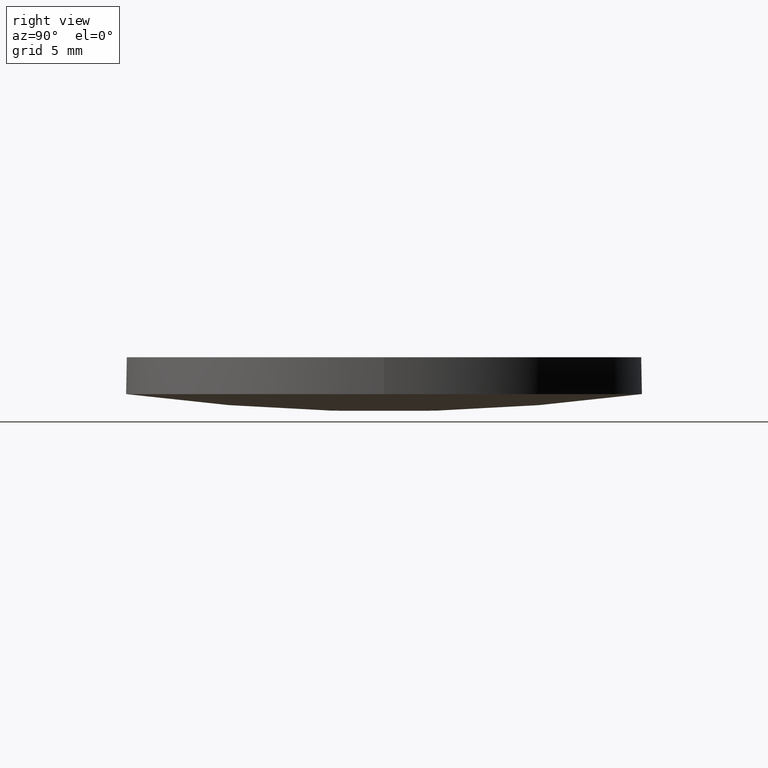
[diagram: clean part render]
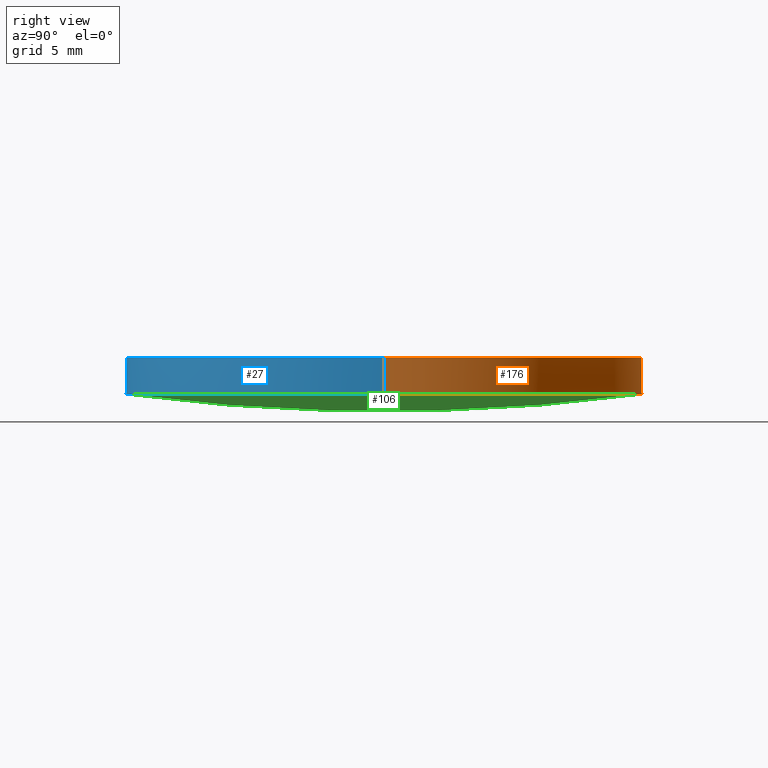
[diagram: same view with three faces highlighted in distinct colors, each labeled with its STEP entity id]
A machine part, right view with three faces highlighted in distinct colors.
Their STEP definitions:

[orange] entity #176 — the highlighted cylindrical surface (partial cylindrical patch) has radius 19.05 mm, axis along (0, 0, 1).
#12 = ORIENTED_EDGE ( 'NONE', *, *, #69, .T. ) ;
#13 = DIRECTION ( 'NONE',  ( -0.0000000000000000000, -0.0000000000000000000, -1.000000000000000000 ) ) ;
#16 = EDGE_LOOP ( 'NONE', ( #151, #12, #138, #203, #189 ) ) ;
#22 = VERTEX_POINT ( 'NONE', #72 ) ;
#23 = EDGE_CURVE ( 'NONE', #75, #175, #190, .T. ) ;
#26 = CYLINDRICAL_SURFACE ( 'NONE', #96, 19.05000000000000100 ) ;
#29 = CARTESIAN_POINT ( 'NONE',  ( -4.662936703425659800E-015, -8.881784197001250400E-016, 1.276371230808250000 ) ) ;
#30 = AXIS2_PLACEMENT_3D ( 'NONE', #29, #161, #194 ) ;
#32 = CARTESIAN_POINT ( 'NONE',  ( 19.04999999999999700, -8.881784197001250400E-016, 1.276371230808250000 ) ) ;
#36 = CARTESIAN_POINT ( 'NONE',  ( 19.04999999999999700, -8.881784197001250400E-016, 4.000000000000000000 ) ) ;
#43 = FACE_OUTER_BOUND ( 'NONE', #16, .T. ) ;
#69 = EDGE_CURVE ( 'NONE', #107, #22, #90, .T. ) ;
#70 = DIRECTION ( 'NONE',  ( 0.0000000000000000000, 0.0000000000000000000, 1.000000000000000000 ) ) ;
#71 = EDGE_CURVE ( 'NONE', #208, #75, #79, .T. ) ;
#72 = CARTESIAN_POINT ( 'NONE',  ( -19.05000000000000400, 1.444773732675583000E-015, 4.000000000000000000 ) ) ;
#74 = CARTESIAN_POINT ( 'NONE',  ( -4.662936703425659800E-015, -8.881784197001250400E-016, 1.276371230808250000 ) ) ;
#75 = VERTEX_POINT ( 'NONE', #32 ) ;
#79 = CIRCLE ( 'NONE', #30, 19.05000000000000100 ) ;
#81 = EDGE_CURVE ( 'NONE', #107, #208, #139, .T. ) ;
#85 = DIRECTION ( 'NONE',  ( 1.000000000000000000, 0.0000000000000000000, 0.0000000000000000000 ) ) ;
#89 = CARTESIAN_POINT ( 'NONE',  ( 2.910610542600875300E-014, 19.04999999999991500, 1.276371230808255100 ) ) ;
#90 = LINE ( 'NONE', #145, #202 ) ;
#96 = AXIS2_PLACEMENT_3D ( 'NONE', #74, #163, #197 ) ;
#100 = EDGE_CURVE ( 'NONE', #22, #175, #221, .T. ) ;
#107 = VERTEX_POINT ( 'NONE', #108 ) ;
#108 = CARTESIAN_POINT ( 'NONE',  ( -19.05000000000000400, 1.444773732675583000E-015, 1.276371230808250000 ) ) ;
#109 = DIRECTION ( 'NONE',  ( -0.0000000000000000000, -0.0000000000000000000, -1.000000000000000000 ) ) ;
#111 = DIRECTION ( 'NONE',  ( 1.000000000000000000, 0.0000000000000000000, 0.0000000000000000000 ) ) ;
#116 = AXIS2_PLACEMENT_3D ( 'NONE', #226, #109, #111 ) ;
#138 = ORIENTED_EDGE ( 'NONE', *, *, #100, .T. ) ;
#139 = CIRCLE ( 'NONE', #116, 19.05000000000000100 ) ;
#145 = CARTESIAN_POINT ( 'NONE',  ( -19.05000000000000400, 1.444773732675583000E-015, 1.276371230808250000 ) ) ;
#151 = ORIENTED_EDGE ( 'NONE', *, *, #81, .F. ) ;
#161 = DIRECTION ( 'NONE',  ( -0.0000000000000000000, -0.0000000000000000000, -1.000000000000000000 ) ) ;
#163 = DIRECTION ( 'NONE',  ( 0.0000000000000000000, 0.0000000000000000000, 1.000000000000000000 ) ) ;
#175 = VERTEX_POINT ( 'NONE', #36 ) ;
#176 = ADVANCED_FACE ( 'NONE', ( #43 ), #26, .T. ) ;
#188 = VECTOR ( 'NONE', #230, 1000.000000000000000 ) ;
#189 = ORIENTED_EDGE ( 'NONE', *, *, #71, .F. ) ;
#190 = LINE ( 'NONE', #192, #188 ) ;
#192 = CARTESIAN_POINT ( 'NONE',  ( 19.04999999999999700, -8.881784197001250400E-016, 1.276371230808250000 ) ) ;
#194 = DIRECTION ( 'NONE',  ( 1.000000000000000000, 0.0000000000000000000, 0.0000000000000000000 ) ) ;
#197 = DIRECTION ( 'NONE',  ( 1.000000000000000000, 0.0000000000000000000, 0.0000000000000000000 ) ) ;
#202 = VECTOR ( 'NONE', #70, 1000.000000000000000 ) ;
#203 = ORIENTED_EDGE ( 'NONE', *, *, #23, .F. ) ;
#207 = AXIS2_PLACEMENT_3D ( 'NONE', #225, #13, #85 ) ;
#208 = VERTEX_POINT ( 'NONE', #89 ) ;
#221 = CIRCLE ( 'NONE', #207, 19.05000000000000100 ) ;
#225 = CARTESIAN_POINT ( 'NONE',  ( -4.662936703425659800E-015, -8.881784197001250400E-016, 4.000000000000000000 ) ) ;
#226 = CARTESIAN_POINT ( 'NONE',  ( -4.662936703425659800E-015, -8.881784197001250400E-016, 1.276371230808250000 ) ) ;
#230 = DIRECTION ( 'NONE',  ( 0.0000000000000000000, 0.0000000000000000000, 1.000000000000000000 ) ) ;

[blue] entity #27 — the highlighted cylindrical surface (partial cylindrical patch) has radius 19.05 mm, axis along (0, 0, 1).
#9 = DIRECTION ( 'NONE',  ( 1.000000000000000000, 0.0000000000000000000, 0.0000000000000000000 ) ) ;
#22 = VERTEX_POINT ( 'NONE', #72 ) ;
#23 = EDGE_CURVE ( 'NONE', #75, #175, #190, .T. ) ;
#27 = ADVANCED_FACE ( 'NONE', ( #160 ), #227, .T. ) ;
#28 = VERTEX_POINT ( 'NONE', #86 ) ;
#32 = CARTESIAN_POINT ( 'NONE',  ( 19.04999999999999700, -8.881784197001250400E-016, 1.276371230808250000 ) ) ;
#36 = CARTESIAN_POINT ( 'NONE',  ( 19.04999999999999700, -8.881784197001250400E-016, 4.000000000000000000 ) ) ;
#45 = EDGE_CURVE ( 'NONE', #75, #28, #82, .T. ) ;
#53 = CARTESIAN_POINT ( 'NONE',  ( -4.662936703425659800E-015, -8.881784197001250400E-016, 1.276371230808250000 ) ) ;
#54 = DIRECTION ( 'NONE',  ( 0.0000000000000000000, 0.0000000000000000000, 1.000000000000000000 ) ) ;
#57 = AXIS2_PLACEMENT_3D ( 'NONE', #53, #87, #9 ) ;
#69 = EDGE_CURVE ( 'NONE', #107, #22, #90, .T. ) ;
#70 = DIRECTION ( 'NONE',  ( 0.0000000000000000000, 0.0000000000000000000, 1.000000000000000000 ) ) ;
#72 = CARTESIAN_POINT ( 'NONE',  ( -19.05000000000000400, 1.444773732675583000E-015, 4.000000000000000000 ) ) ;
#75 = VERTEX_POINT ( 'NONE', #32 ) ;
#78 = CARTESIAN_POINT ( 'NONE',  ( -4.662936703425659800E-015, -8.881784197001250400E-016, 1.276371230808250000 ) ) ;
#82 = CIRCLE ( 'NONE', #57, 19.05000000000000100 ) ;
#83 = AXIS2_PLACEMENT_3D ( 'NONE', #211, #54, #144 ) ;
#86 = CARTESIAN_POINT ( 'NONE',  ( 2.910610542600875300E-014, -19.04999999999994000, 1.276371230808255100 ) ) ;
#87 = DIRECTION ( 'NONE',  ( -0.0000000000000000000, -0.0000000000000000000, -1.000000000000000000 ) ) ;
#90 = LINE ( 'NONE', #145, #202 ) ;
#103 = CIRCLE ( 'NONE', #142, 19.05000000000000100 ) ;
#104 = ORIENTED_EDGE ( 'NONE', *, *, #23, .T. ) ;
#107 = VERTEX_POINT ( 'NONE', #108 ) ;
#108 = CARTESIAN_POINT ( 'NONE',  ( -19.05000000000000400, 1.444773732675583000E-015, 1.276371230808250000 ) ) ;
#115 = EDGE_LOOP ( 'NONE', ( #141, #165, #214, #104, #162 ) ) ;
#122 = AXIS2_PLACEMENT_3D ( 'NONE', #233, #129, #164 ) ;
#129 = DIRECTION ( 'NONE',  ( -0.0000000000000000000, -0.0000000000000000000, -1.000000000000000000 ) ) ;
#135 = DIRECTION ( 'NONE',  ( 1.000000000000000000, 0.0000000000000000000, 0.0000000000000000000 ) ) ;
#141 = ORIENTED_EDGE ( 'NONE', *, *, #69, .F. ) ;
#142 = AXIS2_PLACEMENT_3D ( 'NONE', #78, #155, #135 ) ;
#144 = DIRECTION ( 'NONE',  ( 1.000000000000000000, 0.0000000000000000000, 0.0000000000000000000 ) ) ;
#145 = CARTESIAN_POINT ( 'NONE',  ( -19.05000000000000400, 1.444773732675583000E-015, 1.276371230808250000 ) ) ;
#154 = CIRCLE ( 'NONE', #122, 19.05000000000000100 ) ;
#155 = DIRECTION ( 'NONE',  ( -0.0000000000000000000, -0.0000000000000000000, -1.000000000000000000 ) ) ;
#160 = FACE_OUTER_BOUND ( 'NONE', #115, .T. ) ;
#162 = ORIENTED_EDGE ( 'NONE', *, *, #210, .T. ) ;
#164 = DIRECTION ( 'NONE',  ( 1.000000000000000000, 0.0000000000000000000, 0.0000000000000000000 ) ) ;
#165 = ORIENTED_EDGE ( 'NONE', *, *, #224, .F. ) ;
#175 = VERTEX_POINT ( 'NONE', #36 ) ;
#188 = VECTOR ( 'NONE', #230, 1000.000000000000000 ) ;
#190 = LINE ( 'NONE', #192, #188 ) ;
#192 = CARTESIAN_POINT ( 'NONE',  ( 19.04999999999999700, -8.881784197001250400E-016, 1.276371230808250000 ) ) ;
#202 = VECTOR ( 'NONE', #70, 1000.000000000000000 ) ;
#210 = EDGE_CURVE ( 'NONE', #175, #22, #154, .T. ) ;
#211 = CARTESIAN_POINT ( 'NONE',  ( -4.662936703425659800E-015, -8.881784197001250400E-016, 1.276371230808250000 ) ) ;
#214 = ORIENTED_EDGE ( 'NONE', *, *, #45, .F. ) ;
#224 = EDGE_CURVE ( 'NONE', #28, #107, #103, .T. ) ;
#227 = CYLINDRICAL_SURFACE ( 'NONE', #83, 19.05000000000000100 ) ;
#230 = DIRECTION ( 'NONE',  ( 0.0000000000000000000, 0.0000000000000000000, 1.000000000000000000 ) ) ;
#233 = CARTESIAN_POINT ( 'NONE',  ( -4.662936703425659800E-015, -8.881784197001250400E-016, 4.000000000000000000 ) ) ;

[green] entity #106 — the highlighted face is a freeform B-spline surface patch.
#1 = CARTESIAN_POINT ( 'NONE',  ( 6.431727402686249200, 6.465189879962315100, -0.4383888507263622400 ) ) ;
#9 = DIRECTION ( 'NONE',  ( 1.000000000000000000, 0.0000000000000000000, 0.0000000000000000000 ) ) ;
#14 = DIRECTION ( 'NONE',  ( 1.000000000000000000, 0.0000000000000000000, 2.056625150099659900E-016 ) ) ;
#15 = CARTESIAN_POINT ( 'NONE',  ( 2.909977727114287100E-014, 19.27720950375859800, 1.307140838315845600 ) ) ;
#17 = CARTESIAN_POINT ( 'NONE',  ( 2.945876729701585200E-014, -6.465189879962331100, -0.4383888507263599100 ) ) ;
#28 = VERTEX_POINT ( 'NONE', #86 ) ;
#29 = CARTESIAN_POINT ( 'NONE',  ( -4.662936703425659800E-015, -8.881784197001250400E-016, 1.276371230808250000 ) ) ;
#30 = AXIS2_PLACEMENT_3D ( 'NONE', #29, #161, #194 ) ;
#32 = CARTESIAN_POINT ( 'NONE',  ( 19.04999999999999700, -8.881784197001250400E-016, 1.276371230808250000 ) ) ;
#33 =( BOUNDED_SURFACE ( )  B_SPLINE_SURFACE ( 3, 3, ( 
 ( #143, #105, #229, #166 ),
 ( #17, #131, #117, #215 ),
 ( #182, #1, #34, #198 ),
 ( #15, #234, #92, #153 ) ),
 .UNSPECIFIED., .F., .F., .F. ) 
 B_SPLINE_SURFACE_WITH_KNOTS ( ( 4, 4 ),
 ( 4, 4 ),
 ( 0.0000000000000000000, 1.000000000000000000 ),
 ( 0.0000000000000000000, 1.000000000000000000 ),
 .UNSPECIFIED. ) 
 GEOMETRIC_REPRESENTATION_ITEM ( )  RATIONAL_B_SPLINE_SURFACE ( (
 ( 1.000000000000000000, 0.9984906929497666700, 0.9984906929497666700, 1.000000000000000000),
 ( 0.9938975684485722400, 0.9923974718413030000, 0.9923974718413030000, 0.9938975684485722400),
 ( 0.9938975684485722400, 0.9923974718413030000, 0.9923974718413030000, 0.9938975684485722400),
 ( 1.000000000000000000, 0.9984906929497666700, 0.9984906929497666700, 1.000000000000000000) ) ) 
 REPRESENTATION_ITEM ( '' )  SURFACE ( )  );
#34 = CARTESIAN_POINT ( 'NONE',  ( 12.84889362810139200, 6.465189879962315100, -0.005844034717610155900 ) ) ;
#44 = ORIENTED_EDGE ( 'NONE', *, *, #193, .T. ) ;
#45 = EDGE_CURVE ( 'NONE', #75, #28, #82, .T. ) ;
#53 = CARTESIAN_POINT ( 'NONE',  ( -4.662936703425659800E-015, -8.881784197001250400E-016, 1.276371230808250000 ) ) ;
#57 = AXIS2_PLACEMENT_3D ( 'NONE', #53, #87, #9 ) ;
#71 = EDGE_CURVE ( 'NONE', #208, #75, #79, .T. ) ;
#75 = VERTEX_POINT ( 'NONE', #32 ) ;
#79 = CIRCLE ( 'NONE', #30, 19.05000000000000100 ) ;
#82 = CIRCLE ( 'NONE', #57, 19.05000000000000100 ) ;
#86 = CARTESIAN_POINT ( 'NONE',  ( 2.910610542600875300E-014, -19.04999999999994000, 1.276371230808255100 ) ) ;
#87 = DIRECTION ( 'NONE',  ( -0.0000000000000000000, -0.0000000000000000000, -1.000000000000000000 ) ) ;
#89 = CARTESIAN_POINT ( 'NONE',  ( 2.910610542600875300E-014, 19.04999999999991500, 1.276371230808255100 ) ) ;
#92 = CARTESIAN_POINT ( 'NONE',  ( 12.69231461685204500, 19.27720950375859800, 1.734414582622086300 ) ) ;
#105 = CARTESIAN_POINT ( 'NONE',  ( 6.353349174452232800, -19.27720950375861300, 1.307140838315846700 ) ) ;
#106 = ADVANCED_FACE ( 'NONE', ( #137 ), #33, .T. ) ;
#117 = CARTESIAN_POINT ( 'NONE',  ( 12.84889362810139200, -6.465189879962330200, -0.005844034717606577100 ) ) ;
#120 = CIRCLE ( 'NONE', #201, 142.7999999999999800 ) ;
#125 = ORIENTED_EDGE ( 'NONE', *, *, #71, .T. ) ;
#131 = CARTESIAN_POINT ( 'NONE',  ( 6.431727402686249200, -6.465189879962330200, -0.4383888507263585800 ) ) ;
#137 = FACE_OUTER_BOUND ( 'NONE', #199, .T. ) ;
#143 = CARTESIAN_POINT ( 'NONE',  ( 2.909977727114287100E-014, -19.27720950375861300, 1.307140838315845600 ) ) ;
#147 = DIRECTION ( 'NONE',  ( 0.0000000000000000000, -1.000000000000000000, 0.0000000000000000000 ) ) ;
#153 = CARTESIAN_POINT ( 'NONE',  ( 18.98819399149926200, 19.27720950375859800, 2.587027409410582700 ) ) ;
#161 = DIRECTION ( 'NONE',  ( -0.0000000000000000000, -0.0000000000000000000, -1.000000000000000000 ) ) ;
#166 = CARTESIAN_POINT ( 'NONE',  ( 18.98819399149926200, -19.27720950375861300, 2.587027409410582700 ) ) ;
#172 = ORIENTED_EDGE ( 'NONE', *, *, #45, .T. ) ;
#182 = CARTESIAN_POINT ( 'NONE',  ( 2.945876729701585200E-014, 6.465189879962316900, -0.4383888507263635800 ) ) ;
#193 = EDGE_CURVE ( 'NONE', #28, #208, #120, .T. ) ;
#194 = DIRECTION ( 'NONE',  ( 1.000000000000000000, 0.0000000000000000000, 0.0000000000000000000 ) ) ;
#198 = CARTESIAN_POINT ( 'NONE',  ( 19.22244225356583100, 6.465189879962316900, 0.8572870684788631600 ) ) ;
#199 = EDGE_LOOP ( 'NONE', ( #172, #44, #125 ) ) ;
#201 = AXIS2_PLACEMENT_3D ( 'NONE', #232, #14, #147 ) ;
#208 = VERTEX_POINT ( 'NONE', #89 ) ;
#215 = CARTESIAN_POINT ( 'NONE',  ( 19.22244225356583100, -6.465189879962331100, 0.8572870684788668200 ) ) ;
#229 = CARTESIAN_POINT ( 'NONE',  ( 12.69231461685204500, -19.27720950375861300, 1.734414582622086300 ) ) ;
#232 = CARTESIAN_POINT ( 'NONE',  ( 0.0000000000000000000, -2.842170943040400100E-014, 142.8000000000000100 ) ) ;
#234 = CARTESIAN_POINT ( 'NONE',  ( 6.353349174452232800, 19.27720950375859800, 1.307140838315846700 ) ) ;